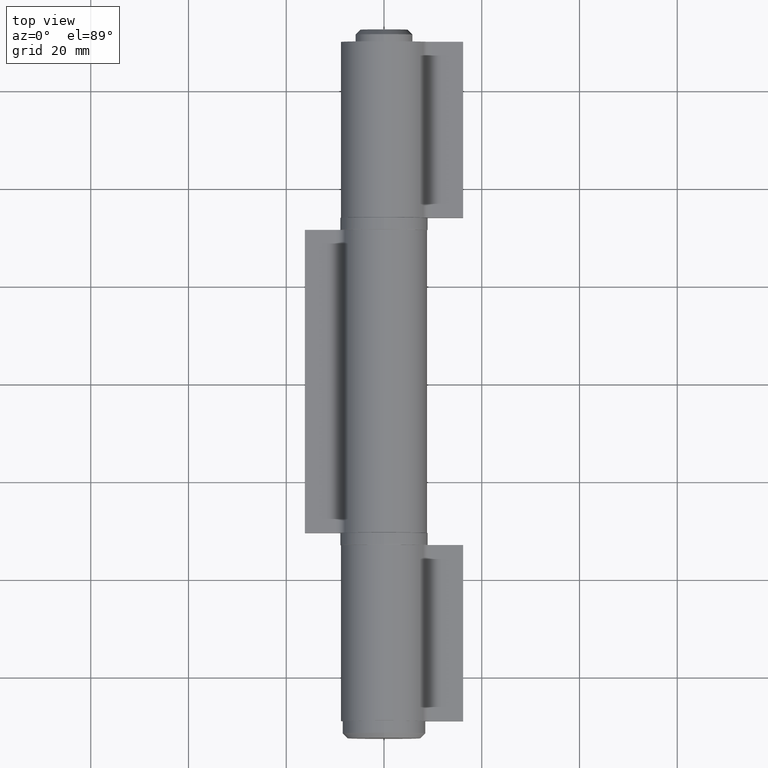
[diagram: clean part render]
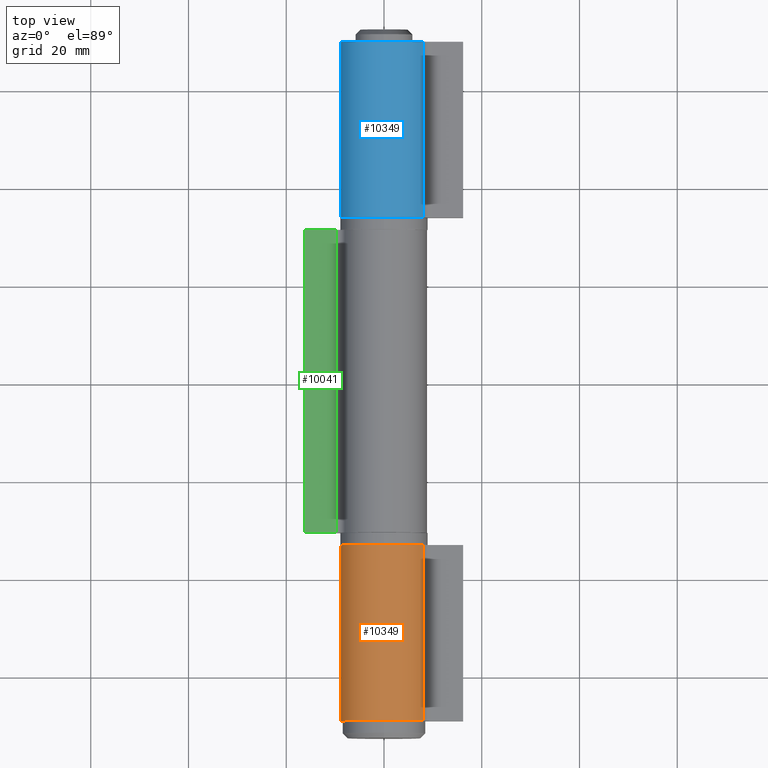
[diagram: same view with three faces highlighted in distinct colors, each labeled with its STEP entity id]
A machine part, top view with three faces highlighted in distinct colors.
Their STEP definitions:

[orange] entity #10349 — the highlighted cylindrical surface (partial cylindrical patch) has radius 8.8 mm, axis along (0, -1, 0).
#61 = FACE_OUTER_BOUND ( 'NONE', #2683, .T. ) ;
#303 = CARTESIAN_POINT ( 'NONE',  ( -3.707407407407434796, 18.00000000000000355, -7.980922898731804160 ) ) ;
#1415 = CARTESIAN_POINT ( 'NONE',  ( 3.707407407407436128, 18.00000000000000355, -7.980922898731804160 ) ) ;
#1475 = DIRECTION ( 'NONE',  ( 0.000000000000000000, 0.000000000000000000, -1.000000000000000000 ) ) ;
#1518 = DIRECTION ( 'NONE',  ( 0.000000000000000000, -1.000000000000000000, 0.000000000000000000 ) ) ;
#1707 = EDGE_CURVE ( 'NONE', #3582, #8810, #2667, .T. ) ;
#2091 = VERTEX_POINT ( 'NONE', #303 ) ;
#2130 = AXIS2_PLACEMENT_3D ( 'NONE', #11426, #1518, #1475 ) ;
#2578 = CARTESIAN_POINT ( 'NONE',  ( 0.000000000000000000, 18.00000000000000355, 0.000000000000000000 ) ) ;
#2667 = LINE ( 'NONE', #1415, #6215 ) ;
#2683 = EDGE_LOOP ( 'NONE', ( #4530, #9524, #6252, #4276 ) ) ;
#3463 = CIRCLE ( 'NONE', #4688, 8.800000000000066436 ) ;
#3582 = VERTEX_POINT ( 'NONE', #7039 ) ;
#4276 = ORIENTED_EDGE ( 'NONE', *, *, #7972, .T. ) ;
#4330 = DIRECTION ( 'NONE',  ( 0.000000000000000000, 1.000000000000000000, 0.000000000000000000 ) ) ;
#4530 = ORIENTED_EDGE ( 'NONE', *, *, #5108, .T. ) ;
#4550 = VERTEX_POINT ( 'NONE', #11621 ) ;
#4688 = AXIS2_PLACEMENT_3D ( 'NONE', #7405, #8276, #5626 ) ;
#4704 = AXIS2_PLACEMENT_3D ( 'NONE', #2578, #4330, #11543 ) ;
#4833 = DIRECTION ( 'NONE',  ( 0.000000000000000000, -1.000000000000000000, 0.000000000000000000 ) ) ;
#5108 = EDGE_CURVE ( 'NONE', #4550, #8810, #3463, .T. ) ;
#5603 = LINE ( 'NONE', #7590, #6454 ) ;
#5626 = DIRECTION ( 'NONE',  ( 0.000000000000000000, 0.000000000000000000, 1.000000000000000000 ) ) ;
#6215 = VECTOR ( 'NONE', #7747, 1000.000000000000000 ) ;
#6252 = ORIENTED_EDGE ( 'NONE', *, *, #7581, .F. ) ;
#6454 = VECTOR ( 'NONE', #4833, 1000.000000000000000 ) ;
#7039 = CARTESIAN_POINT ( 'NONE',  ( 3.707407407407436128, 18.00000000000000355, -7.980922898731804160 ) ) ;
#7165 = CIRCLE ( 'NONE', #4704, 8.800000000000066436 ) ;
#7405 = CARTESIAN_POINT ( 'NONE',  ( 0.000000000000000000, -18.00000000000000355, 0.000000000000000000 ) ) ;
#7581 = EDGE_CURVE ( 'NONE', #2091, #3582, #7165, .T. ) ;
#7590 = CARTESIAN_POINT ( 'NONE',  ( -3.707407407407434796, 18.00000000000000355, -7.980922898731804160 ) ) ;
#7747 = DIRECTION ( 'NONE',  ( 0.000000000000000000, -1.000000000000000000, 0.000000000000000000 ) ) ;
#7972 = EDGE_CURVE ( 'NONE', #2091, #4550, #5603, .T. ) ;
#8276 = DIRECTION ( 'NONE',  ( 0.000000000000000000, 1.000000000000000000, 0.000000000000000000 ) ) ;
#8810 = VERTEX_POINT ( 'NONE', #9318 ) ;
#9318 = CARTESIAN_POINT ( 'NONE',  ( 3.707407407407436128, -18.00000000000000355, -7.980922898731804160 ) ) ;
#9524 = ORIENTED_EDGE ( 'NONE', *, *, #1707, .F. ) ;
#10349 = ADVANCED_FACE ( 'NONE', ( #61 ), #11679, .T. ) ;
#11426 = CARTESIAN_POINT ( 'NONE',  ( 0.000000000000000000, 18.00000000000000355, 0.000000000000000000 ) ) ;
#11543 = DIRECTION ( 'NONE',  ( 0.000000000000000000, 0.000000000000000000, 1.000000000000000000 ) ) ;
#11621 = CARTESIAN_POINT ( 'NONE',  ( -3.707407407407434796, -18.00000000000000355, -7.980922898731804160 ) ) ;
#11679 = CYLINDRICAL_SURFACE ( 'NONE', #2130, 8.800000000000066436 ) ;

[blue] entity #10349 — the highlighted cylindrical surface (partial cylindrical patch) has radius 8.8 mm, axis along (0, -1, 0).
#61 = FACE_OUTER_BOUND ( 'NONE', #2683, .T. ) ;
#303 = CARTESIAN_POINT ( 'NONE',  ( -3.707407407407434796, 18.00000000000000355, -7.980922898731804160 ) ) ;
#1415 = CARTESIAN_POINT ( 'NONE',  ( 3.707407407407436128, 18.00000000000000355, -7.980922898731804160 ) ) ;
#1475 = DIRECTION ( 'NONE',  ( 0.000000000000000000, 0.000000000000000000, -1.000000000000000000 ) ) ;
#1518 = DIRECTION ( 'NONE',  ( 0.000000000000000000, -1.000000000000000000, 0.000000000000000000 ) ) ;
#1707 = EDGE_CURVE ( 'NONE', #3582, #8810, #2667, .T. ) ;
#2091 = VERTEX_POINT ( 'NONE', #303 ) ;
#2130 = AXIS2_PLACEMENT_3D ( 'NONE', #11426, #1518, #1475 ) ;
#2578 = CARTESIAN_POINT ( 'NONE',  ( 0.000000000000000000, 18.00000000000000355, 0.000000000000000000 ) ) ;
#2667 = LINE ( 'NONE', #1415, #6215 ) ;
#2683 = EDGE_LOOP ( 'NONE', ( #4530, #9524, #6252, #4276 ) ) ;
#3463 = CIRCLE ( 'NONE', #4688, 8.800000000000066436 ) ;
#3582 = VERTEX_POINT ( 'NONE', #7039 ) ;
#4276 = ORIENTED_EDGE ( 'NONE', *, *, #7972, .T. ) ;
#4330 = DIRECTION ( 'NONE',  ( 0.000000000000000000, 1.000000000000000000, 0.000000000000000000 ) ) ;
#4530 = ORIENTED_EDGE ( 'NONE', *, *, #5108, .T. ) ;
#4550 = VERTEX_POINT ( 'NONE', #11621 ) ;
#4688 = AXIS2_PLACEMENT_3D ( 'NONE', #7405, #8276, #5626 ) ;
#4704 = AXIS2_PLACEMENT_3D ( 'NONE', #2578, #4330, #11543 ) ;
#4833 = DIRECTION ( 'NONE',  ( 0.000000000000000000, -1.000000000000000000, 0.000000000000000000 ) ) ;
#5108 = EDGE_CURVE ( 'NONE', #4550, #8810, #3463, .T. ) ;
#5603 = LINE ( 'NONE', #7590, #6454 ) ;
#5626 = DIRECTION ( 'NONE',  ( 0.000000000000000000, 0.000000000000000000, 1.000000000000000000 ) ) ;
#6215 = VECTOR ( 'NONE', #7747, 1000.000000000000000 ) ;
#6252 = ORIENTED_EDGE ( 'NONE', *, *, #7581, .F. ) ;
#6454 = VECTOR ( 'NONE', #4833, 1000.000000000000000 ) ;
#7039 = CARTESIAN_POINT ( 'NONE',  ( 3.707407407407436128, 18.00000000000000355, -7.980922898731804160 ) ) ;
#7165 = CIRCLE ( 'NONE', #4704, 8.800000000000066436 ) ;
#7405 = CARTESIAN_POINT ( 'NONE',  ( 0.000000000000000000, -18.00000000000000355, 0.000000000000000000 ) ) ;
#7581 = EDGE_CURVE ( 'NONE', #2091, #3582, #7165, .T. ) ;
#7590 = CARTESIAN_POINT ( 'NONE',  ( -3.707407407407434796, 18.00000000000000355, -7.980922898731804160 ) ) ;
#7747 = DIRECTION ( 'NONE',  ( 0.000000000000000000, -1.000000000000000000, 0.000000000000000000 ) ) ;
#7972 = EDGE_CURVE ( 'NONE', #2091, #4550, #5603, .T. ) ;
#8276 = DIRECTION ( 'NONE',  ( 0.000000000000000000, 1.000000000000000000, 0.000000000000000000 ) ) ;
#8810 = VERTEX_POINT ( 'NONE', #9318 ) ;
#9318 = CARTESIAN_POINT ( 'NONE',  ( 3.707407407407436128, -18.00000000000000355, -7.980922898731804160 ) ) ;
#9524 = ORIENTED_EDGE ( 'NONE', *, *, #1707, .F. ) ;
#10349 = ADVANCED_FACE ( 'NONE', ( #61 ), #11679, .T. ) ;
#11426 = CARTESIAN_POINT ( 'NONE',  ( 0.000000000000000000, 18.00000000000000355, 0.000000000000000000 ) ) ;
#11543 = DIRECTION ( 'NONE',  ( 0.000000000000000000, 0.000000000000000000, 1.000000000000000000 ) ) ;
#11621 = CARTESIAN_POINT ( 'NONE',  ( -3.707407407407434796, -18.00000000000000355, -7.980922898731804160 ) ) ;
#11679 = CYLINDRICAL_SURFACE ( 'NONE', #2130, 8.800000000000066436 ) ;

[green] entity #10041 — the highlighted planar face has unit normal (-0, 0, -1).
#497 = DIRECTION ( 'NONE',  ( -0.000000000000000000, -1.000000000000000000, -0.000000000000000000 ) ) ;
#926 = DIRECTION ( 'NONE',  ( 1.000000000000000000, 0.000000000000000000, -2.031218873193317875E-16 ) ) ;
#1123 = CARTESIAN_POINT ( 'NONE',  ( -2.549999999999999822, 31.00000000000000000, -16.19999999999999929 ) ) ;
#1158 = LINE ( 'NONE', #2908, #1884 ) ;
#1346 = VECTOR ( 'NONE', #9602, 1000.000000000000000 ) ;
#1884 = VECTOR ( 'NONE', #497, 1000.000000000000000 ) ;
#2695 = ORIENTED_EDGE ( 'NONE', *, *, #10759, .F. ) ;
#2756 = VECTOR ( 'NONE', #3482, 1000.000000000000000 ) ;
#2908 = CARTESIAN_POINT ( 'NONE',  ( -2.549999999999997158, 31.00000000000000000, -9.794769012079868276 ) ) ;
#3394 = DIRECTION ( 'NONE',  ( 2.031218873193318121E-16, 0.000000000000000000, 1.000000000000000000 ) ) ;
#3482 = DIRECTION ( 'NONE',  ( -0.000000000000000000, -1.000000000000000000, -0.000000000000000000 ) ) ;
#3508 = VERTEX_POINT ( 'NONE', #1123 ) ;
#3914 = EDGE_CURVE ( 'NONE', #5921, #11757, #6036, .T. ) ;
#4574 = AXIS2_PLACEMENT_3D ( 'NONE', #10787, #926, #7188 ) ;
#5198 = CARTESIAN_POINT ( 'NONE',  ( -2.549999999999999822, 31.00000000000000000, -16.19999999999999929 ) ) ;
#5627 = VERTEX_POINT ( 'NONE', #8423 ) ;
#5686 = CARTESIAN_POINT ( 'NONE',  ( -2.549999999999999822, -31.00000000000000000, -16.19999999999999929 ) ) ;
#5768 = LINE ( 'NONE', #5198, #6926 ) ;
#5921 = VERTEX_POINT ( 'NONE', #10462 ) ;
#6036 = LINE ( 'NONE', #5686, #1346 ) ;
#6352 = ORIENTED_EDGE ( 'NONE', *, *, #3914, .T. ) ;
#6926 = VECTOR ( 'NONE', #3394, 1000.000000000000000 ) ;
#7188 = DIRECTION ( 'NONE',  ( -2.031218873193317875E-16, 0.000000000000000000, -1.000000000000000000 ) ) ;
#7320 = EDGE_CURVE ( 'NONE', #3508, #5627, #5768, .T. ) ;
#7700 = FACE_OUTER_BOUND ( 'NONE', #10733, .T. ) ;
#7890 = ORIENTED_EDGE ( 'NONE', *, *, #9367, .T. ) ;
#8423 = CARTESIAN_POINT ( 'NONE',  ( -2.549999999999997158, 31.00000000000000000, -9.794769012079868276 ) ) ;
#9126 = PLANE ( 'NONE',  #4574 ) ;
#9367 = EDGE_CURVE ( 'NONE', #3508, #5921, #11560, .T. ) ;
#9578 = CARTESIAN_POINT ( 'NONE',  ( -2.549999999999999822, 31.00000000000000000, -16.19999999999999929 ) ) ;
#9602 = DIRECTION ( 'NONE',  ( 2.031218873193318121E-16, 0.000000000000000000, 1.000000000000000000 ) ) ;
#9864 = ORIENTED_EDGE ( 'NONE', *, *, #7320, .F. ) ;
#10041 = ADVANCED_FACE ( 'NONE', ( #7700 ), #9126, .F. ) ;
#10462 = CARTESIAN_POINT ( 'NONE',  ( -2.549999999999999822, -31.00000000000000000, -16.19999999999999929 ) ) ;
#10733 = EDGE_LOOP ( 'NONE', ( #6352, #2695, #9864, #7890 ) ) ;
#10759 = EDGE_CURVE ( 'NONE', #5627, #11757, #1158, .T. ) ;
#10787 = CARTESIAN_POINT ( 'NONE',  ( -2.549999999999999822, 31.00000000000000000, -16.19999999999999929 ) ) ;
#10988 = CARTESIAN_POINT ( 'NONE',  ( -2.549999999999997158, -31.00000000000000000, -9.794769012079868276 ) ) ;
#11560 = LINE ( 'NONE', #9578, #2756 ) ;
#11757 = VERTEX_POINT ( 'NONE', #10988 ) ;